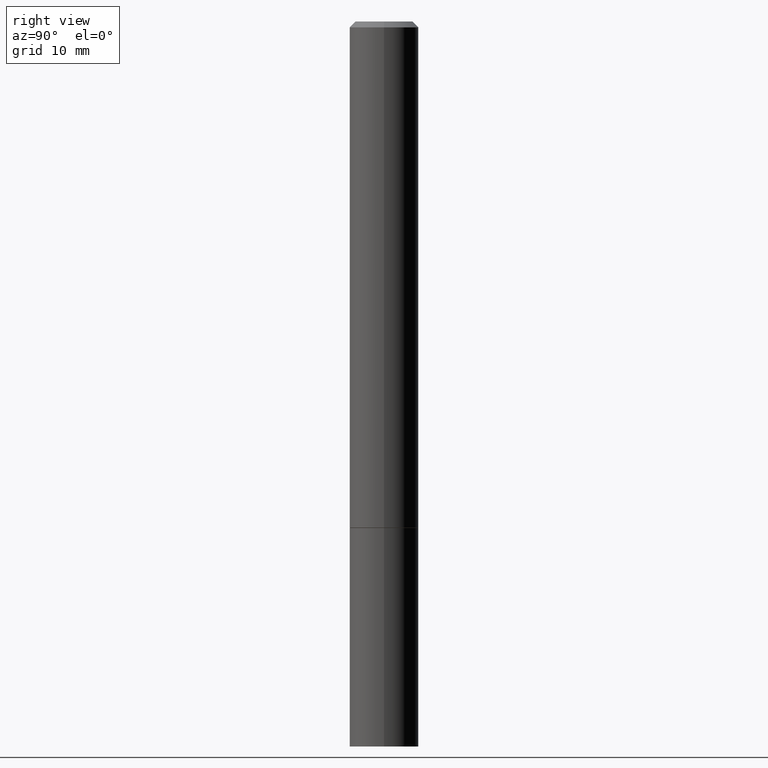
[diagram: clean part render]
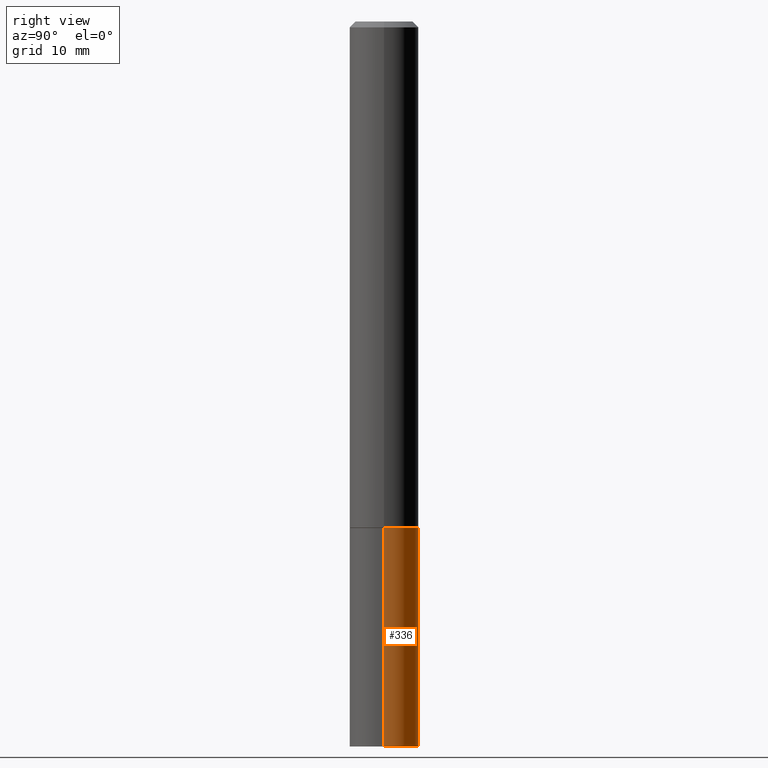
[diagram: same view with one face highlighted and labeled with its STEP entity id]
A machine part, right view. The second image highlights one B-rep face of the part: STEP entity #336.
In plain terms, the highlighted cylindrical surface (edge-blend (fillet) strip) has radius 2.9997 mm, axis along (-0, 0, 1).
Its self-contained STEP definition (entity closure, byte-faithful):
#11 = FACE_OUTER_BOUND ( 'NONE', #227, .T. ) ;
#13 = VERTEX_POINT ( 'NONE', #251 ) ;
#28 = ORIENTED_EDGE ( 'NONE', *, *, #224, .T. ) ;
#63 = DIRECTION ( 'NONE',  ( -2.445468806185136877E-29, 3.491481338843145188E-15, 1.000000000000000000 ) ) ;
#66 = CARTESIAN_POINT ( 'NONE',  ( 0.000000000000000000, 0.000000000000000000, 0.000000000000000000 ) ) ;
#82 = LINE ( 'NONE', #186, #92 ) ;
#83 = CARTESIAN_POINT ( 'NONE',  ( 0.1181000000000000383, -6.872981015512730918E-15, -1.732300000000000173 ) ) ;
#85 = CARTESIAN_POINT ( 'NONE',  ( 4.236285612954512953E-29, -6.048293123277982656E-15, -1.732300000000000173 ) ) ;
#91 = AXIS2_PLACEMENT_3D ( 'NONE', #85, #161, #219 ) ;
#92 = VECTOR ( 'NONE', #63, 39.37007874015748143 ) ;
#94 = DIRECTION ( 'NONE',  ( -2.445468806185136597E-29, 3.491481338843145583E-15, 1.000000000000000000 ) ) ;
#105 = VECTOR ( 'NONE', #147, 39.37007874015748143 ) ;
#108 = CARTESIAN_POINT ( 'NONE',  ( 6.065496279980994755E-29, -8.659921164732655335E-15, -2.480300000000000171 ) ) ;
#116 = DIRECTION ( 'NONE',  ( 1.000000000000000000, -6.982962677686266711E-15, 4.876176775795935793E-29 ) ) ;
#125 = CIRCLE ( 'NONE', #91, 0.1181000000000000383 ) ;
#131 = EDGE_CURVE ( 'NONE', #13, #159, #221, .T. ) ;
#135 = DIRECTION ( 'NONE',  ( -2.445468806185136597E-29, 3.491481338843145583E-15, 1.000000000000000000 ) ) ;
#142 = CARTESIAN_POINT ( 'NONE',  ( 0.1181000000000000383, -8.246878922347483612E-16, 5.758764772215001842E-30 ) ) ;
#147 = DIRECTION ( 'NONE',  ( -2.445468806185136877E-29, 3.491481338843145188E-15, 1.000000000000000000 ) ) ;
#154 = AXIS2_PLACEMENT_3D ( 'NONE', #108, #135, #254 ) ;
#158 = VERTEX_POINT ( 'NONE', #286 ) ;
#159 = VERTEX_POINT ( 'NONE', #321 ) ;
#161 = DIRECTION ( 'NONE',  ( -2.445468806185136597E-29, 3.491481338843145583E-15, 1.000000000000000000 ) ) ;
#181 = AXIS2_PLACEMENT_3D ( 'NONE', #66, #94, #116 ) ;
#186 = CARTESIAN_POINT ( 'NONE',  ( -0.1181000000000000383, 8.391509709326785915E-16, -5.809262341591045886E-30 ) ) ;
#191 = VERTEX_POINT ( 'NONE', #83 ) ;
#204 = EDGE_CURVE ( 'NONE', #191, #158, #125, .T. ) ;
#216 = ORIENTED_EDGE ( 'NONE', *, *, #204, .F. ) ;
#219 = DIRECTION ( 'NONE',  ( 1.000000000000000000, -6.982962677686270655E-15, 0.000000000000000000 ) ) ;
#221 = CIRCLE ( 'NONE', #154, 0.1181000000000000383 ) ;
#224 = EDGE_CURVE ( 'NONE', #159, #158, #82, .T. ) ;
#227 = EDGE_LOOP ( 'NONE', ( #332, #28, #216, #297 ) ) ;
#251 = CARTESIAN_POINT ( 'NONE',  ( 0.1181000000000000383, -9.484609056967403598E-15, -2.480300000000000171 ) ) ;
#254 = DIRECTION ( 'NONE',  ( 1.000000000000000000, -6.982962677686270655E-15, 0.000000000000000000 ) ) ;
#286 = CARTESIAN_POINT ( 'NONE',  ( -0.1181000000000000383, -6.514956173072640404E-15, -1.732300000000000173 ) ) ;
#293 = EDGE_CURVE ( 'NONE', #13, #191, #299, .T. ) ;
#295 = CYLINDRICAL_SURFACE ( 'NONE', #181, 0.1181000000000000383 ) ;
#297 = ORIENTED_EDGE ( 'NONE', *, *, #293, .F. ) ;
#299 = LINE ( 'NONE', #142, #105 ) ;
#321 = CARTESIAN_POINT ( 'NONE',  ( -0.1181000000000000383, -6.514956173072640404E-15, -2.480300000000000171 ) ) ;
#332 = ORIENTED_EDGE ( 'NONE', *, *, #131, .T. ) ;
#336 = ADVANCED_FACE ( 'NONE', ( #11 ), #295, .T. ) ;